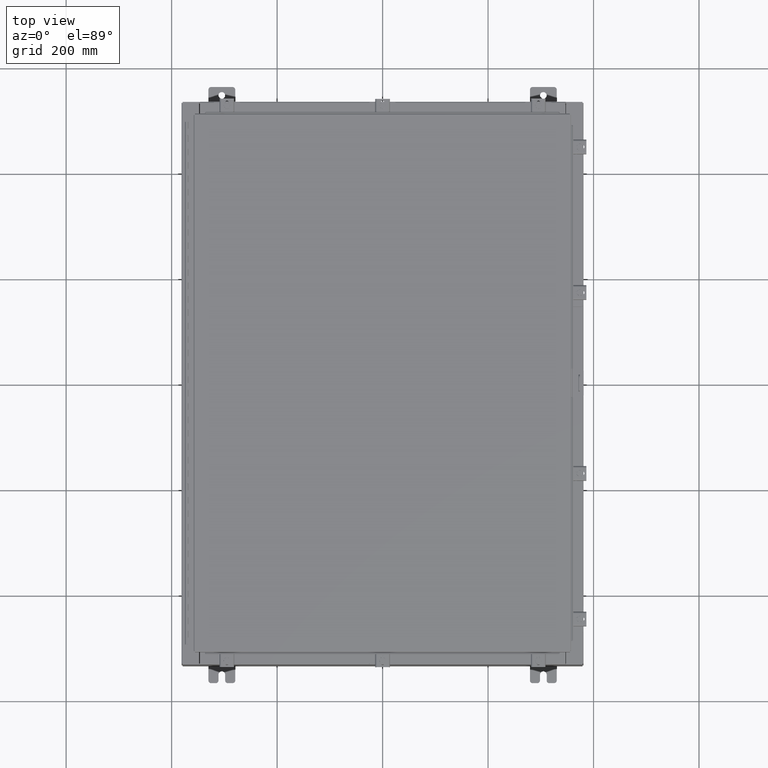
[diagram: clean part render]
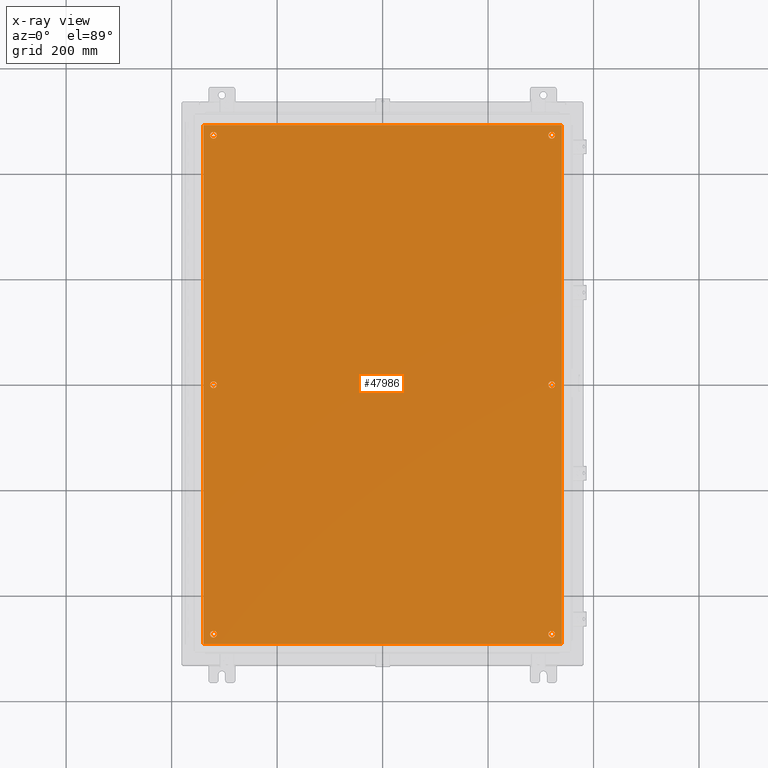
[diagram: x-ray — body ghosted, one internal face saturated and labeled with its STEP entity id]
A machine part, top view, then the same camera in x-ray: the body is ghosted and one INTERNAL B-rep face — a face not visible from any outside direction — is saturated and labeled: STEP entity #47986.
In plain terms, the highlighted planar face has unit normal (0, 0, -1).
Its self-contained STEP definition (entity closure, byte-faithful):
#87 = AXIS2_PLACEMENT_3D ( 'NONE', #21285, #47277, #25011 ) ;
#284 = EDGE_CURVE ( 'NONE', #35733, #9325, #42635, .T. ) ;
#782 = CIRCLE ( 'NONE', #26950, 0.2500000000000008900 ) ;
#1313 = VERTEX_POINT ( 'NONE', #1485 ) ;
#1485 = CARTESIAN_POINT ( 'NONE',  ( -12.87500000000000500, 18.62499999999999600, -0.1039999999999999800 ) ) ;
#1645 = EDGE_CURVE ( 'NONE', #3285, #32569, #42435, .T. ) ;
#1724 = CARTESIAN_POINT ( 'NONE',  ( 12.37500000000000400, 18.62499999999999600, -0.1039999999999999800 ) ) ;
#1909 = VERTEX_POINT ( 'NONE', #7179 ) ;
#2217 = CARTESIAN_POINT ( 'NONE',  ( 13.50000000000000000, 19.38299999999999200, -0.1040000000000009100 ) ) ;
#2291 = FACE_BOUND ( 'NONE', #25189, .T. ) ;
#2422 = DIRECTION ( 'NONE',  ( -1.000000000000000000, 0.0000000000000000000, 0.0000000000000000000 ) ) ;
#2597 = AXIS2_PLACEMENT_3D ( 'NONE', #37675, #15363, #41403 ) ;
#2621 = DIRECTION ( 'NONE',  ( -1.000000000000000000, 0.0000000000000000000, 0.0000000000000000000 ) ) ;
#3017 = CARTESIAN_POINT ( 'NONE',  ( 12.62500000000000400, -18.62499999999999600, -0.1039999999999999800 ) ) ;
#3227 = EDGE_CURVE ( 'NONE', #44908, #3429, #12675, .T. ) ;
#3285 = VERTEX_POINT ( 'NONE', #22983 ) ;
#3429 = VERTEX_POINT ( 'NONE', #31293 ) ;
#3465 = FACE_BOUND ( 'NONE', #10228, .T. ) ;
#4055 = CARTESIAN_POINT ( 'NONE',  ( -13.38300000000000300, 19.38299999999999200, -0.1040000000000041900 ) ) ;
#4314 = CARTESIAN_POINT ( 'NONE',  ( -12.62500000000000200, -8.298848852119578500E-016, -0.1039999999999999800 ) ) ;
#4690 = ORIENTED_EDGE ( 'NONE', *, *, #35005, .T. ) ;
#5872 = DIRECTION ( 'NONE',  ( 0.0000000000000000000, 1.000000000000000000, 0.0000000000000000000 ) ) ;
#5954 = AXIS2_PLACEMENT_3D ( 'NONE', #32277, #39763, #17475 ) ;
#6074 = VECTOR ( 'NONE', #13455, 39.37007874015748100 ) ;
#6354 = ORIENTED_EDGE ( 'NONE', *, *, #32700, .F. ) ;
#6666 = ORIENTED_EDGE ( 'NONE', *, *, #31226, .T. ) ;
#6713 = CIRCLE ( 'NONE', #37420, 0.2500000000000008900 ) ;
#6754 = DIRECTION ( 'NONE',  ( -1.000000000000000000, 0.0000000000000000000, 0.0000000000000000000 ) ) ;
#7058 = CARTESIAN_POINT ( 'NONE',  ( 12.62500000000000200, 2.262348282635109500E-015, -0.1039999999999999800 ) ) ;
#7114 = VERTEX_POINT ( 'NONE', #20903 ) ;
#7179 = CARTESIAN_POINT ( 'NONE',  ( 12.87500000000000500, 18.62499999999999600, -0.1039999999999999800 ) ) ;
#8040 = DIRECTION ( 'NONE',  ( -1.000000000000000000, 0.0000000000000000000, 0.0000000000000000000 ) ) ;
#8987 = EDGE_LOOP ( 'NONE', ( #43806, #21063 ) ) ;
#9249 = EDGE_CURVE ( 'NONE', #1909, #37437, #35759, .T. ) ;
#9325 = VERTEX_POINT ( 'NONE', #23720 ) ;
#9649 = ORIENTED_EDGE ( 'NONE', *, *, #14929, .T. ) ;
#10228 = EDGE_LOOP ( 'NONE', ( #16587, #19184 ) ) ;
#10303 = CARTESIAN_POINT ( 'NONE',  ( -13.38300000000000300, 19.38299999999999200, -0.1040000000000041900 ) ) ;
#10831 = DIRECTION ( 'NONE',  ( -1.000000000000000000, 0.0000000000000000000, 0.0000000000000000000 ) ) ;
#11031 = FACE_OUTER_BOUND ( 'NONE', #45641, .T. ) ;
#11930 = CARTESIAN_POINT ( 'NONE',  ( 12.62500000000000400, 18.62499999999999600, -0.1039999999999999800 ) ) ;
#11971 = CARTESIAN_POINT ( 'NONE',  ( -12.62500000000000400, -18.62499999999999600, -0.1039999999999999800 ) ) ;
#12095 = EDGE_CURVE ( 'NONE', #31454, #13656, #23207, .T. ) ;
#12353 = CARTESIAN_POINT ( 'NONE',  ( 12.37500000000000400, -18.62499999999999600, -0.1039999999999999800 ) ) ;
#12675 = CIRCLE ( 'NONE', #2597, 0.2500000000000008900 ) ;
#13455 = DIRECTION ( 'NONE',  ( -1.000000000000000000, -0.0000000000000000000, -0.0000000000000000000 ) ) ;
#13656 = VERTEX_POINT ( 'NONE', #14183 ) ;
#13688 = LINE ( 'NONE', #10303, #34649 ) ;
#14183 = CARTESIAN_POINT ( 'NONE',  ( -12.87500000000000500, -18.62499999999999600, -0.1039999999999999800 ) ) ;
#14517 = VERTEX_POINT ( 'NONE', #36944 ) ;
#14929 = EDGE_CURVE ( 'NONE', #7114, #1313, #14948, .T. ) ;
#14948 = CIRCLE ( 'NONE', #87, 0.2500000000000008900 ) ;
#15192 = EDGE_LOOP ( 'NONE', ( #17043, #4690 ) ) ;
#15307 = AXIS2_PLACEMENT_3D ( 'NONE', #39690, #17397, #43430 ) ;
#15363 = DIRECTION ( 'NONE',  ( -0.0000000000000000000, -0.0000000000000000000, 1.000000000000000000 ) ) ;
#15413 = EDGE_LOOP ( 'NONE', ( #9649, #22878 ) ) ;
#15646 = EDGE_CURVE ( 'NONE', #47675, #14517, #42836, .T. ) ;
#15654 = DIRECTION ( 'NONE',  ( -1.000000000000000000, 0.0000000000000000000, 0.0000000000000000000 ) ) ;
#15693 = DIRECTION ( 'NONE',  ( -1.000000000000000000, 0.0000000000000000000, 0.0000000000000000000 ) ) ;
#16226 = CARTESIAN_POINT ( 'NONE',  ( 12.37500000000000200, 2.292964452613793300E-015, -0.1039999999999999800 ) ) ;
#16587 = ORIENTED_EDGE ( 'NONE', *, *, #1645, .T. ) ;
#16694 = EDGE_CURVE ( 'NONE', #1313, #7114, #782, .T. ) ;
#17043 = ORIENTED_EDGE ( 'NONE', *, *, #9249, .T. ) ;
#17313 = PLANE ( 'NONE',  #5954 ) ;
#17397 = DIRECTION ( 'NONE',  ( -0.0000000000000000000, -0.0000000000000000000, 1.000000000000000000 ) ) ;
#17475 = DIRECTION ( 'NONE',  ( -1.000000000000000000, 0.0000000000000000000, -0.0000000000000000000 ) ) ;
#18096 = AXIS2_PLACEMENT_3D ( 'NONE', #7058, #33106, #10831 ) ;
#18246 = DIRECTION ( 'NONE',  ( 0.0000000000000000000, -1.000000000000000000, 0.0000000000000000000 ) ) ;
#18403 = CIRCLE ( 'NONE', #18096, 0.2500000000000008900 ) ;
#19184 = ORIENTED_EDGE ( 'NONE', *, *, #23217, .T. ) ;
#19471 = CARTESIAN_POINT ( 'NONE',  ( 12.62500000000000200, 2.262348282635109500E-015, -0.1039999999999999800 ) ) ;
#19824 = CARTESIAN_POINT ( 'NONE',  ( 12.62500000000000400, 18.62499999999999600, -0.1039999999999999800 ) ) ;
#20684 = LINE ( 'NONE', #28114, #39327 ) ;
#20903 = CARTESIAN_POINT ( 'NONE',  ( -12.37500000000000400, 18.62499999999999600, -0.1039999999999999800 ) ) ;
#20922 = FACE_BOUND ( 'NONE', #15413, .T. ) ;
#21063 = ORIENTED_EDGE ( 'NONE', *, *, #284, .T. ) ;
#21285 = CARTESIAN_POINT ( 'NONE',  ( -12.62500000000000400, 18.62499999999999600, -0.1039999999999999800 ) ) ;
#21562 = EDGE_CURVE ( 'NONE', #9325, #35733, #35959, .T. ) ;
#22092 = AXIS2_PLACEMENT_3D ( 'NONE', #47157, #24888, #2621 ) ;
#22345 = AXIS2_PLACEMENT_3D ( 'NONE', #19824, #45844, #23555 ) ;
#22878 = ORIENTED_EDGE ( 'NONE', *, *, #16694, .T. ) ;
#22983 = CARTESIAN_POINT ( 'NONE',  ( 12.87500000000000400, 2.262348282635109500E-015, -0.1039999999999999800 ) ) ;
#23006 = VECTOR ( 'NONE', #40906, 39.37007874015748100 ) ;
#23186 = DIRECTION ( 'NONE',  ( -1.000000000000000000, 0.0000000000000000000, 0.0000000000000000000 ) ) ;
#23207 = CIRCLE ( 'NONE', #15307, 0.2500000000000008900 ) ;
#23217 = EDGE_CURVE ( 'NONE', #32569, #3285, #18403, .T. ) ;
#23555 = DIRECTION ( 'NONE',  ( -1.000000000000000000, 0.0000000000000000000, 0.0000000000000000000 ) ) ;
#23720 = CARTESIAN_POINT ( 'NONE',  ( 12.87500000000000500, -18.62499999999999600, -0.1039999999999999800 ) ) ;
#23828 = EDGE_CURVE ( 'NONE', #43977, #47675, #13688, .T. ) ;
#23891 = CIRCLE ( 'NONE', #35244, 0.2500000000000008900 ) ;
#24027 = VERTEX_POINT ( 'NONE', #45219 ) ;
#24687 = DIRECTION ( 'NONE',  ( -0.0000000000000000000, -0.0000000000000000000, 1.000000000000000000 ) ) ;
#24888 = DIRECTION ( 'NONE',  ( -0.0000000000000000000, -0.0000000000000000000, 1.000000000000000000 ) ) ;
#25011 = DIRECTION ( 'NONE',  ( -1.000000000000000000, 0.0000000000000000000, 0.0000000000000000000 ) ) ;
#25189 = EDGE_LOOP ( 'NONE', ( #40464, #33433 ) ) ;
#25821 = LINE ( 'NONE', #2217, #6074 ) ;
#26950 = AXIS2_PLACEMENT_3D ( 'NONE', #46970, #24687, #2422 ) ;
#28114 = CARTESIAN_POINT ( 'NONE',  ( 13.38299999999999900, -19.38299999999999900, -0.1040000000000009100 ) ) ;
#29019 = DIRECTION ( 'NONE',  ( -0.0000000000000000000, -0.0000000000000000000, 1.000000000000000000 ) ) ;
#29490 = CARTESIAN_POINT ( 'NONE',  ( -13.50000000000000000, -19.38300000000000300, -0.1040000000000009100 ) ) ;
#30332 = DIRECTION ( 'NONE',  ( -0.0000000000000000000, -0.0000000000000000000, 1.000000000000000000 ) ) ;
#30811 = FACE_BOUND ( 'NONE', #15192, .T. ) ;
#31226 = EDGE_CURVE ( 'NONE', #3429, #44908, #6713, .T. ) ;
#31293 = CARTESIAN_POINT ( 'NONE',  ( -12.87500000000000400, -7.992687152332741600E-016, -0.1039999999999999800 ) ) ;
#31454 = VERTEX_POINT ( 'NONE', #31630 ) ;
#31630 = CARTESIAN_POINT ( 'NONE',  ( -12.37500000000000400, -18.62499999999999600, -0.1039999999999999800 ) ) ;
#32144 = EDGE_CURVE ( 'NONE', #14517, #24027, #20684, .T. ) ;
#32277 = CARTESIAN_POINT ( 'NONE',  ( 0.0000000000000000000, 0.0000000000000000000, -0.1039999999999999800 ) ) ;
#32569 = VERTEX_POINT ( 'NONE', #16226 ) ;
#32700 = EDGE_CURVE ( 'NONE', #24027, #43977, #25821, .T. ) ;
#33106 = DIRECTION ( 'NONE',  ( -0.0000000000000000000, -0.0000000000000000000, 1.000000000000000000 ) ) ;
#33433 = ORIENTED_EDGE ( 'NONE', *, *, #42959, .T. ) ;
#34013 = AXIS2_PLACEMENT_3D ( 'NONE', #19471, #45480, #23186 ) ;
#34611 = ORIENTED_EDGE ( 'NONE', *, *, #23828, .F. ) ;
#34649 = VECTOR ( 'NONE', #18246, 39.37007874015748100 ) ;
#35005 = EDGE_CURVE ( 'NONE', #37437, #1909, #23891, .T. ) ;
#35244 = AXIS2_PLACEMENT_3D ( 'NONE', #11930, #37962, #15654 ) ;
#35733 = VERTEX_POINT ( 'NONE', #12353 ) ;
#35759 = CIRCLE ( 'NONE', #22345, 0.2500000000000008900 ) ;
#35959 = CIRCLE ( 'NONE', #22092, 0.2500000000000008900 ) ;
#36944 = CARTESIAN_POINT ( 'NONE',  ( 13.38299999999999900, -19.38299999999999900, -0.1040000000000009100 ) ) ;
#37420 = AXIS2_PLACEMENT_3D ( 'NONE', #4314, #30332, #8040 ) ;
#37437 = VERTEX_POINT ( 'NONE', #1724 ) ;
#37675 = CARTESIAN_POINT ( 'NONE',  ( -12.62500000000000200, -8.298848852119578500E-016, -0.1039999999999999800 ) ) ;
#37689 = CARTESIAN_POINT ( 'NONE',  ( -13.38300000000000300, -19.38300000000000300, -0.1040000000000009100 ) ) ;
#37962 = DIRECTION ( 'NONE',  ( -0.0000000000000000000, -0.0000000000000000000, 1.000000000000000000 ) ) ;
#37998 = DIRECTION ( 'NONE',  ( -0.0000000000000000000, -0.0000000000000000000, 1.000000000000000000 ) ) ;
#39327 = VECTOR ( 'NONE', #5872, 39.37007874015748100 ) ;
#39690 = CARTESIAN_POINT ( 'NONE',  ( -12.62500000000000400, -18.62499999999999600, -0.1039999999999999800 ) ) ;
#39763 = DIRECTION ( 'NONE',  ( 0.0000000000000000000, 0.0000000000000000000, -1.000000000000000000 ) ) ;
#39775 = CIRCLE ( 'NONE', #45737, 0.2500000000000008900 ) ;
#40464 = ORIENTED_EDGE ( 'NONE', *, *, #12095, .T. ) ;
#40724 = FACE_BOUND ( 'NONE', #8987, .T. ) ;
#40906 = DIRECTION ( 'NONE',  ( 1.000000000000000000, -0.0000000000000000000, -0.0000000000000000000 ) ) ;
#41146 = AXIS2_PLACEMENT_3D ( 'NONE', #3017, #29019, #6754 ) ;
#41403 = DIRECTION ( 'NONE',  ( -1.000000000000000000, 0.0000000000000000000, 0.0000000000000000000 ) ) ;
#41888 = FACE_BOUND ( 'NONE', #42707, .T. ) ;
#42435 = CIRCLE ( 'NONE', #34013, 0.2500000000000008900 ) ;
#42635 = CIRCLE ( 'NONE', #41146, 0.2500000000000008900 ) ;
#42707 = EDGE_LOOP ( 'NONE', ( #46334, #6666 ) ) ;
#42836 = LINE ( 'NONE', #29490, #23006 ) ;
#42959 = EDGE_CURVE ( 'NONE', #13656, #31454, #39775, .T. ) ;
#43430 = DIRECTION ( 'NONE',  ( -1.000000000000000000, 0.0000000000000000000, 0.0000000000000000000 ) ) ;
#43433 = ORIENTED_EDGE ( 'NONE', *, *, #32144, .F. ) ;
#43806 = ORIENTED_EDGE ( 'NONE', *, *, #21562, .T. ) ;
#43977 = VERTEX_POINT ( 'NONE', #4055 ) ;
#44908 = VERTEX_POINT ( 'NONE', #47068 ) ;
#45219 = CARTESIAN_POINT ( 'NONE',  ( 13.38299999999999900, 19.38299999999999200, -0.1040000000000009100 ) ) ;
#45480 = DIRECTION ( 'NONE',  ( -0.0000000000000000000, -0.0000000000000000000, 1.000000000000000000 ) ) ;
#45641 = EDGE_LOOP ( 'NONE', ( #45769, #34611, #6354, #43433 ) ) ;
#45737 = AXIS2_PLACEMENT_3D ( 'NONE', #11971, #37998, #15693 ) ;
#45769 = ORIENTED_EDGE ( 'NONE', *, *, #15646, .F. ) ;
#45844 = DIRECTION ( 'NONE',  ( -0.0000000000000000000, -0.0000000000000000000, 1.000000000000000000 ) ) ;
#46334 = ORIENTED_EDGE ( 'NONE', *, *, #3227, .T. ) ;
#46970 = CARTESIAN_POINT ( 'NONE',  ( -12.62500000000000400, 18.62499999999999600, -0.1039999999999999800 ) ) ;
#47068 = CARTESIAN_POINT ( 'NONE',  ( -12.37500000000000200, -8.298848852119578500E-016, -0.1039999999999999800 ) ) ;
#47157 = CARTESIAN_POINT ( 'NONE',  ( 12.62500000000000400, -18.62499999999999600, -0.1039999999999999800 ) ) ;
#47277 = DIRECTION ( 'NONE',  ( -0.0000000000000000000, -0.0000000000000000000, 1.000000000000000000 ) ) ;
#47675 = VERTEX_POINT ( 'NONE', #37689 ) ;
#47986 = ADVANCED_FACE ( 'NONE', ( #3465, #41888, #2291, #40724, #30811, #20922, #11031 ), #17313, .T. ) ;